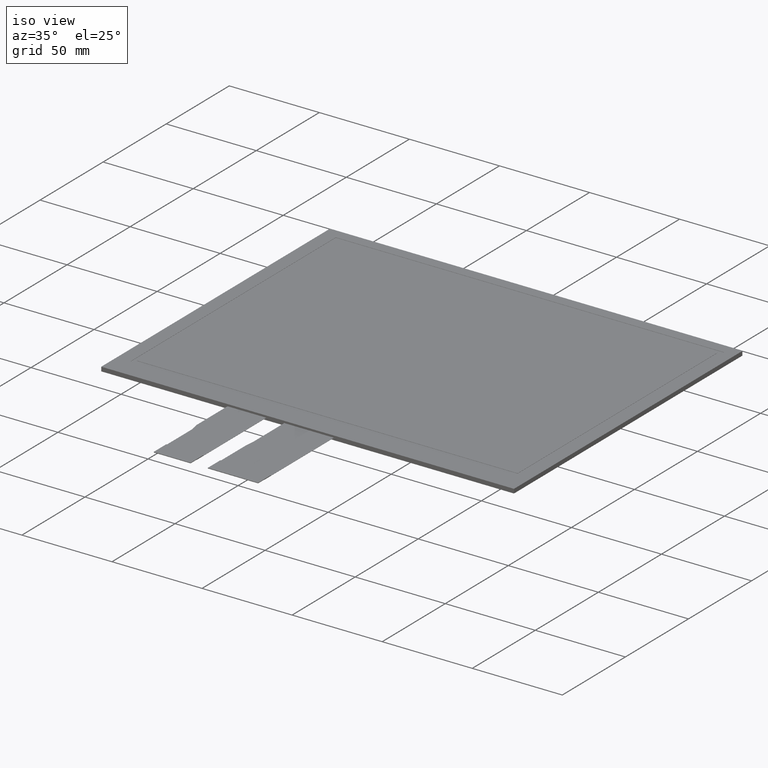
[diagram: clean part render]
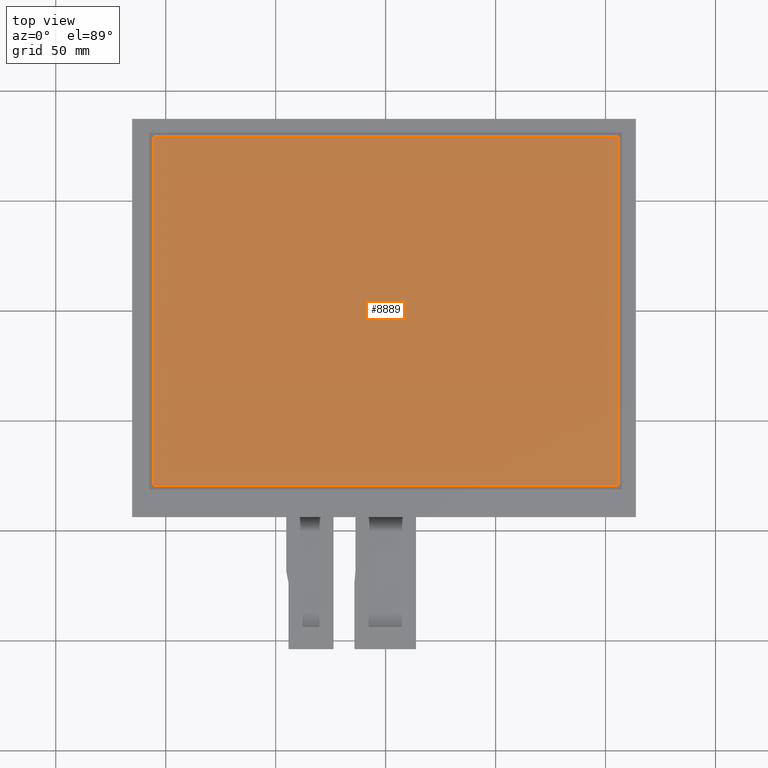
[diagram: tour spotlight — one face highlighted and labeled with its STEP entity id]
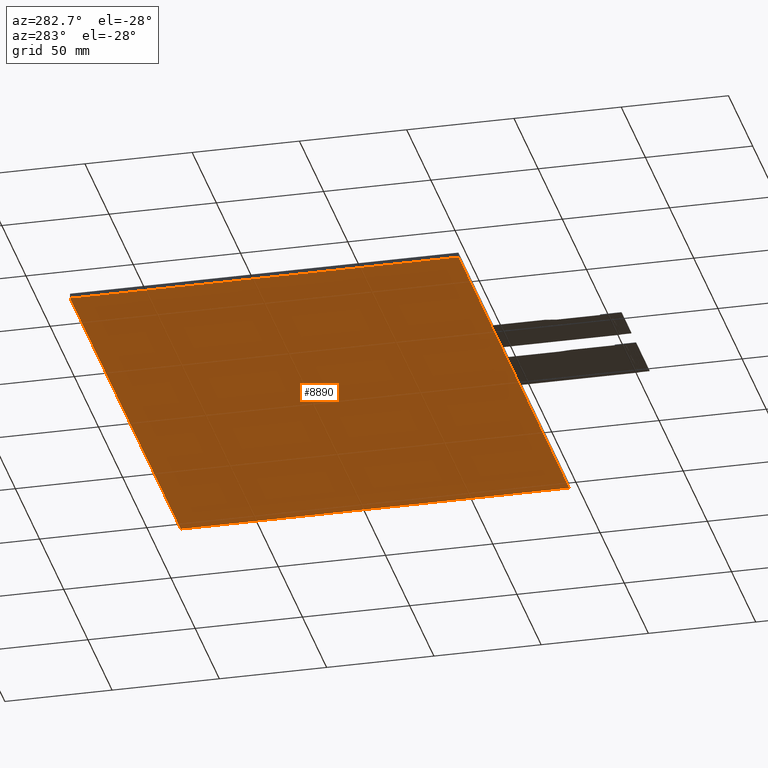
[diagram: tour spotlight — one face highlighted and labeled with its STEP entity id]
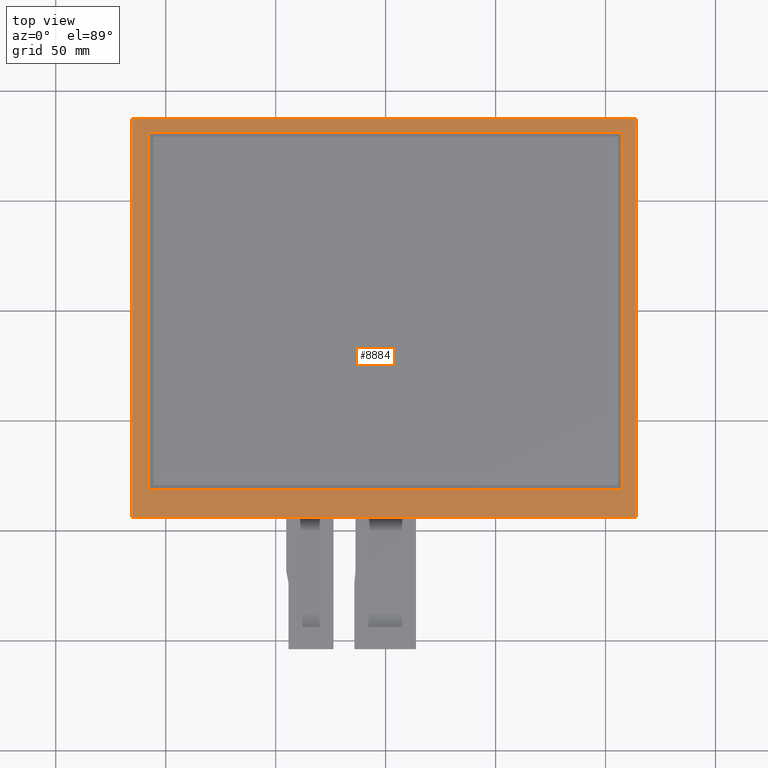
[diagram: tour spotlight — one face highlighted and labeled with its STEP entity id]
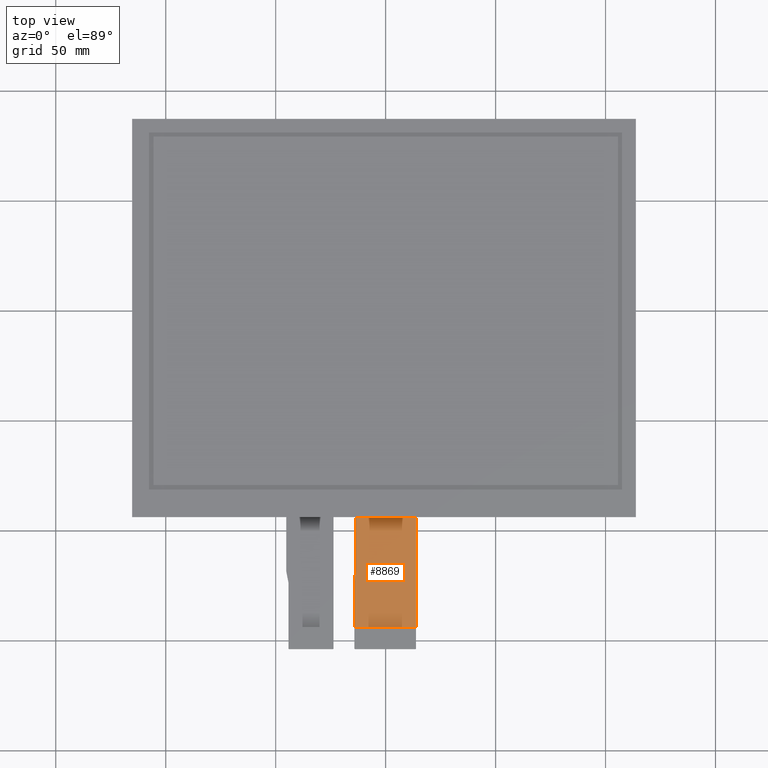
[diagram: tour spotlight — one face highlighted and labeled with its STEP entity id]
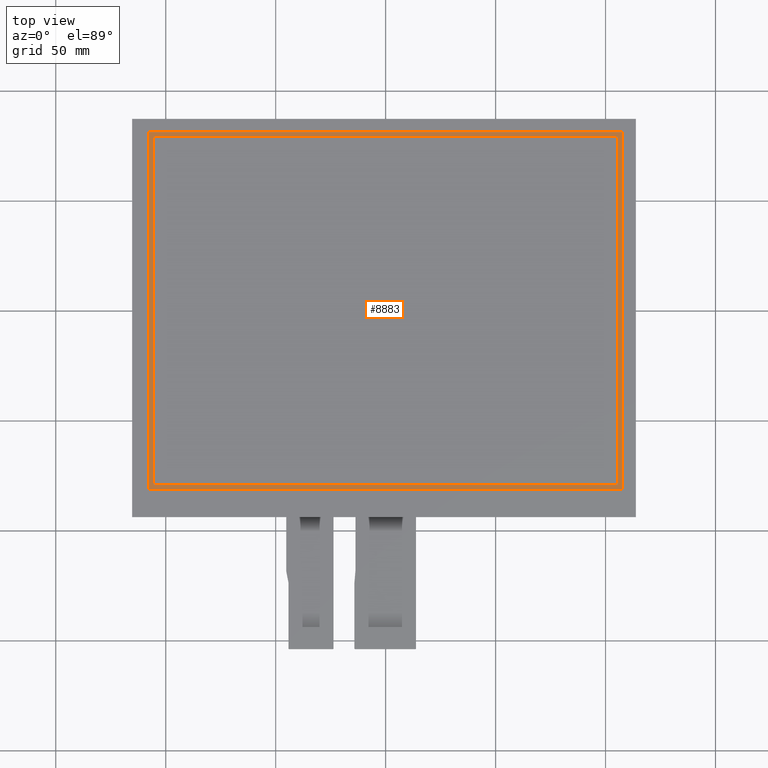
[diagram: tour spotlight — one face highlighted and labeled with its STEP entity id]
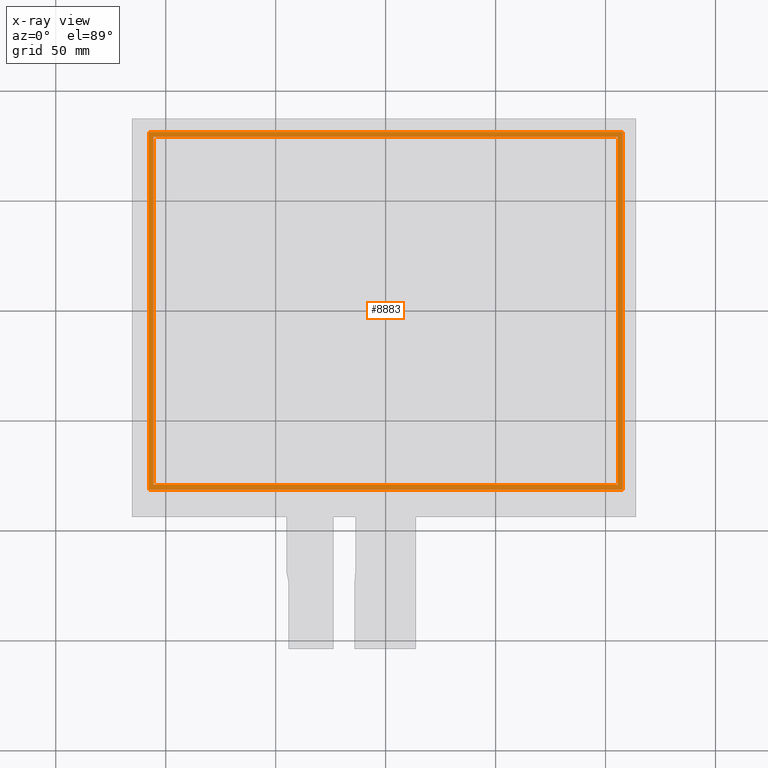
[diagram: x-ray of the same camera — body ghosted, this tour face saturated]
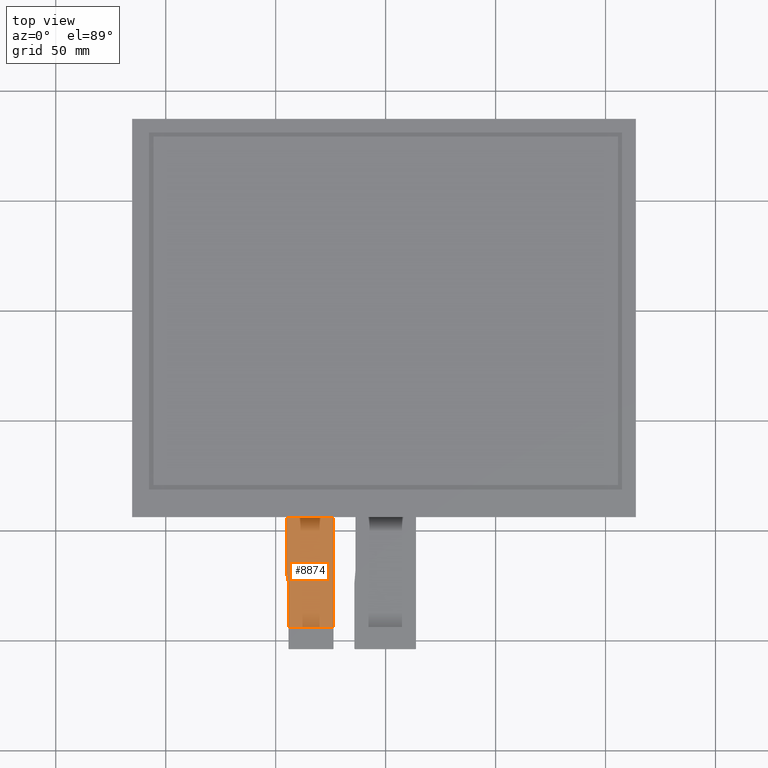
[diagram: tour spotlight — one face highlighted and labeled with its STEP entity id]
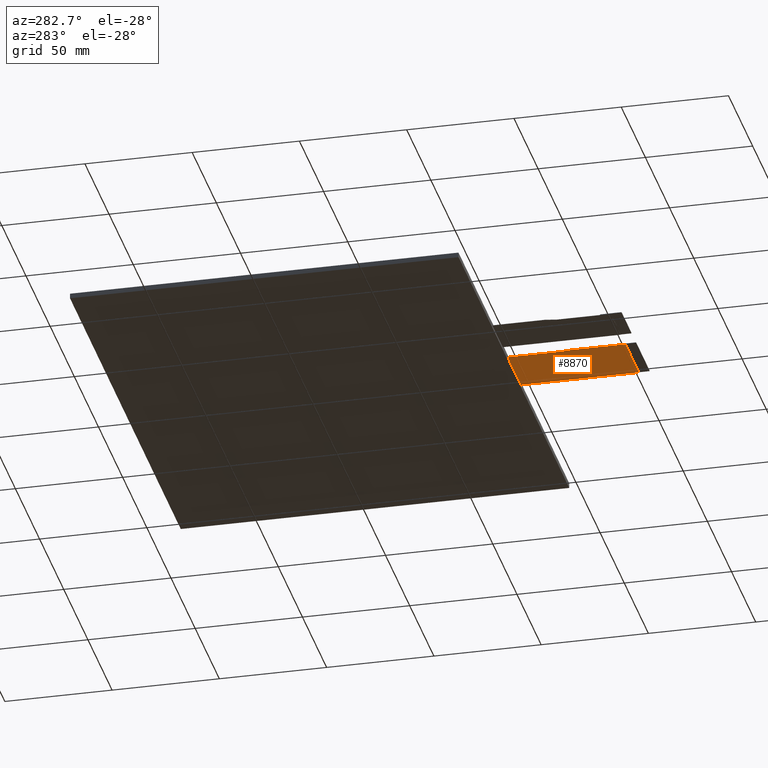
[diagram: tour spotlight — one face highlighted and labeled with its STEP entity id]
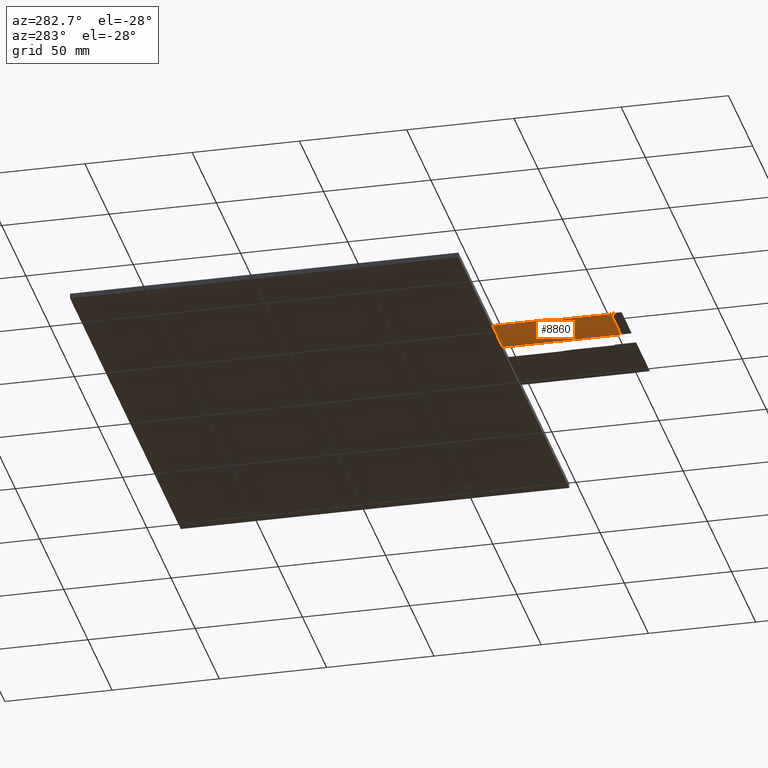
[diagram: tour spotlight — one face highlighted and labeled with its STEP entity id]
A machine part: a face-by-face anatomy tour. The part has 422 B-rep faces; the first image is the clean iso view, then the 8 largest visible faces are spotlighted one at a time (largest first), each with its STEP entity span.

Face 1 — top view, entity #8889. In plain terms, the highlighted planar face has unit normal (0, 0, 1).
Definition (entity closure, byte-faithful):
#551=PLANE('',#9339);
#973=FACE_OUTER_BOUND('',#1399,.T.);
#1399=EDGE_LOOP('',(#8457,#8458,#8459,#8460));
#2605=LINE('',#13873,#3845);
#2609=LINE('',#13881,#3849);
#2612=LINE('',#13887,#3852);
#2615=LINE('',#13892,#3855);
#3845=VECTOR('',#11377,10.);
#3849=VECTOR('',#11383,10.);
#3852=VECTOR('',#11388,10.);
#3855=VECTOR('',#11393,10.);
#4697=VERTEX_POINT('',#13871);
#4698=VERTEX_POINT('',#13872);
#4701=VERTEX_POINT('',#13880);
#4703=VERTEX_POINT('',#13886);
#5933=EDGE_CURVE('',#4697,#4698,#2605,.T.);
#5937=EDGE_CURVE('',#4701,#4697,#2609,.T.);
#5940=EDGE_CURVE('',#4703,#4701,#2612,.T.);
#5943=EDGE_CURVE('',#4698,#4703,#2615,.T.);
#8457=ORIENTED_EDGE('',*,*,#5933,.T.);
#8458=ORIENTED_EDGE('',*,*,#5943,.T.);
#8459=ORIENTED_EDGE('',*,*,#5940,.T.);
#8460=ORIENTED_EDGE('',*,*,#5937,.T.);
#8889=ADVANCED_FACE('',(#973),#551,.T.);
#9339=AXIS2_PLACEMENT_3D('',#13944,#11439,#11440);
#11377=DIRECTION('',(1.,0.,0.));
#11383=DIRECTION('',(0.,-1.,0.));
#11388=DIRECTION('',(-1.,0.,0.));
#11393=DIRECTION('',(0.,1.,0.));
#11439=DIRECTION('center_axis',(0.,0.,1.));
#11440=DIRECTION('ref_axis',(1.,0.,0.));
#13871=CARTESIAN_POINT('',(-105.6,-79.2,0.));
#13872=CARTESIAN_POINT('',(105.6,-79.2,0.));
#13873=CARTESIAN_POINT('',(-53.175,-79.2,0.));
#13880=CARTESIAN_POINT('',(-105.6,79.2,0.));
#13881=CARTESIAN_POINT('',(-105.6,37.975,0.));
#13886=CARTESIAN_POINT('',(105.6,79.2,0.));
#13887=CARTESIAN_POINT('',(52.425,79.2,0.));
#13892=CARTESIAN_POINT('',(105.6,-41.225,0.));
#13944=CARTESIAN_POINT('Origin',(-0.750000000000028,-3.24999999999999,0.));

Face 2 — auxiliary view, entity #8890. In plain terms, the highlighted planar face has unit normal (0, 0, -1).
Definition (entity closure, byte-faithful):
#552=PLANE('',#9340);
#974=FACE_OUTER_BOUND('',#1400,.T.);
#1400=EDGE_LOOP('',(#8461,#8462,#8463,#8464));
#2634=LINE('',#13932,#3874);
#2636=LINE('',#13936,#3876);
#2638=LINE('',#13940,#3878);
#2640=LINE('',#13943,#3880);
#3874=VECTOR('',#11426,10.);
#3876=VECTOR('',#11430,10.);
#3878=VECTOR('',#11434,10.);
#3880=VECTOR('',#11438,10.);
#4717=VERTEX_POINT('',#13929);
#4718=VERTEX_POINT('',#13931);
#4719=VERTEX_POINT('',#13935);
#4720=VERTEX_POINT('',#13939);
#5962=EDGE_CURVE('',#4718,#4717,#2634,.T.);
#5964=EDGE_CURVE('',#4719,#4718,#2636,.T.);
#5966=EDGE_CURVE('',#4720,#4719,#2638,.T.);
#5968=EDGE_CURVE('',#4717,#4720,#2640,.T.);
#8461=ORIENTED_EDGE('',*,*,#5968,.T.);
#8462=ORIENTED_EDGE('',*,*,#5966,.T.);
#8463=ORIENTED_EDGE('',*,*,#5964,.T.);
#8464=ORIENTED_EDGE('',*,*,#5962,.T.);
#8890=ADVANCED_FACE('',(#974),#552,.T.);
#9340=AXIS2_PLACEMENT_3D('',#13945,#11441,#11442);
#11426=DIRECTION('',(-1.96174140187769E-16,1.,0.));
#11430=DIRECTION('',(-1.,-1.55072618018354E-16,0.));
#11434=DIRECTION('',(1.96174140187769E-16,-1.,0.));
#11438=DIRECTION('',(1.,0.,0.));
#11441=DIRECTION('center_axis',(0.,0.,-1.));
#11442=DIRECTION('ref_axis',(-1.,0.,0.));
#13929=CARTESIAN_POINT('',(-115.3,87.3,-2.35));
#13931=CARTESIAN_POINT('',(-115.3,-93.8,-2.35));
#13932=CARTESIAN_POINT('',(-115.3,87.3,-2.35));
#13935=CARTESIAN_POINT('',(113.8,-93.8,-2.35));
#13936=CARTESIAN_POINT('',(-115.3,-93.8,-2.35));
#13939=CARTESIAN_POINT('',(113.8,87.3,-2.35));
#13940=CARTESIAN_POINT('',(113.8,-93.8,-2.35));
#13943=CARTESIAN_POINT('',(113.8,87.3,-2.35));
#13945=CARTESIAN_POINT('Origin',(-0.750000000000028,-3.24999999999999,-2.35));

Face 3 — top view, entity #8884. In plain terms, the highlighted planar face has unit normal (0, 0, 1).
Definition (entity closure, byte-faithful):
#132=FACE_BOUND('',#1392,.T.);
#546=PLANE('',#9334);
#968=FACE_OUTER_BOUND('',#1391,.T.);
#1391=EDGE_LOOP('',(#8425,#8426,#8427,#8428));
#1392=EDGE_LOOP('',(#8429,#8430,#8431,#8432));
#2617=LINE('',#13897,#3857);
#2621=LINE('',#13905,#3861);
#2624=LINE('',#13911,#3864);
#2627=LINE('',#13916,#3867);
#2629=LINE('',#13922,#3869);
#2630=LINE('',#13924,#3870);
#2631=LINE('',#13926,#3871);
#2632=LINE('',#13927,#3872);
#3857=VECTOR('',#11397,10.);
#3861=VECTOR('',#11403,10.);
#3864=VECTOR('',#11408,10.);
#3867=VECTOR('',#11413,10.);
#3869=VECTOR('',#11419,10.);
#3870=VECTOR('',#11420,10.);
#3871=VECTOR('',#11421,10.);
#3872=VECTOR('',#11422,10.);
#4705=VERTEX_POINT('',#13895);
#4706=VERTEX_POINT('',#13896);
#4709=VERTEX_POINT('',#13904);
#4711=VERTEX_POINT('',#13910);
#4713=VERTEX_POINT('',#13920);
#4714=VERTEX_POINT('',#13921);
#4715=VERTEX_POINT('',#13923);
#4716=VERTEX_POINT('',#13925);
#5945=EDGE_CURVE('',#4705,#4706,#2617,.T.);
#5949=EDGE_CURVE('',#4709,#4705,#2621,.T.);
#5952=EDGE_CURVE('',#4711,#4709,#2624,.T.);
#5955=EDGE_CURVE('',#4706,#4711,#2627,.T.);
#5957=EDGE_CURVE('',#4713,#4714,#2629,.T.);
#5958=EDGE_CURVE('',#4714,#4715,#2630,.T.);
#5959=EDGE_CURVE('',#4715,#4716,#2631,.T.);
#5960=EDGE_CURVE('',#4716,#4713,#2632,.T.);
#8425=ORIENTED_EDGE('',*,*,#5957,.T.);
#8426=ORIENTED_EDGE('',*,*,#5958,.T.);
#8427=ORIENTED_EDGE('',*,*,#5959,.T.);
#8428=ORIENTED_EDGE('',*,*,#5960,.T.);
#8429=ORIENTED_EDGE('',*,*,#5945,.T.);
#8430=ORIENTED_EDGE('',*,*,#5955,.T.);
#8431=ORIENTED_EDGE('',*,*,#5952,.T.);
#8432=ORIENTED_EDGE('',*,*,#5949,.T.);
#8884=ADVANCED_FACE('',(#968,#132),#546,.T.);
#9334=AXIS2_PLACEMENT_3D('',#13919,#11417,#11418);
#11397=DIRECTION('',(-2.18359783577167E-16,1.,0.));
#11403=DIRECTION('',(-1.,0.,0.));
#11408=DIRECTION('',(1.09179891788583E-16,-1.,0.));
#11413=DIRECTION('',(1.,0.,0.));
#11417=DIRECTION('center_axis',(0.,0.,1.));
#11418=DIRECTION('ref_axis',(1.,0.,0.));
#11419=DIRECTION('',(-1.,0.,0.));
#11420=DIRECTION('',(1.96174140187769E-16,-1.,0.));
#11421=DIRECTION('',(1.,1.55072618018354E-16,0.));
#11422=DIRECTION('',(-1.96174140187769E-16,1.,0.));
#13895=CARTESIAN_POINT('',(-107.7,-81.4,0.));
#13896=CARTESIAN_POINT('',(-107.7,81.3,0.));
#13897=CARTESIAN_POINT('',(-107.7,-42.325,0.));
#13904=CARTESIAN_POINT('',(107.7,-81.4,0.));
#13905=CARTESIAN_POINT('',(53.475,-81.4,0.));
#13910=CARTESIAN_POINT('',(107.7,81.3,0.));
#13911=CARTESIAN_POINT('',(107.7,39.025,0.));
#13916=CARTESIAN_POINT('',(-54.225,81.3,0.));
#13919=CARTESIAN_POINT('Origin',(-0.750000000000028,-3.24999999999999,0.));
#13920=CARTESIAN_POINT('',(113.8,87.3,0.));
#13921=CARTESIAN_POINT('',(-115.3,87.3,0.));
#13922=CARTESIAN_POINT('',(113.8,87.3,0.));
#13923=CARTESIAN_POINT('',(-115.3,-93.8,0.));
#13924=CARTESIAN_POINT('',(-115.3,87.3,0.));
#13925=CARTESIAN_POINT('',(113.8,-93.8,0.));
#13926=CARTESIAN_POINT('',(-115.3,-93.8,0.));
#13927=CARTESIAN_POINT('',(113.8,-93.8,0.));

Face 4 — top view, entity #8869. In plain terms, the highlighted planar face has unit normal (0, 0, 1).
Definition (entity closure, byte-faithful):
#531=PLANE('',#9319);
#953=FACE_OUTER_BOUND('',#1375,.T.);
#1375=EDGE_LOOP('',(#8351,#8352,#8353,#8354,#8355,#8356));
#1803=LINE('',#12268,#3043);
#2583=LINE('',#13828,#3823);
#2586=LINE('',#13833,#3826);
#2590=LINE('',#13843,#3830);
#2594=LINE('',#13850,#3834);
#2596=LINE('',#13853,#3836);
#3043=VECTOR('',#9779,10.);
#3823=VECTOR('',#11331,10.);
#3826=VECTOR('',#11336,10.);
#3830=VECTOR('',#11346,10.);
#3834=VECTOR('',#11352,10.);
#3836=VECTOR('',#11356,10.);
#4292=VERTEX_POINT('',#12265);
#4293=VERTEX_POINT('',#12267);
#4686=VERTEX_POINT('',#13825);
#4687=VERTEX_POINT('',#13827);
#4690=VERTEX_POINT('',#13841);
#4691=VERTEX_POINT('',#13842);
#5131=EDGE_CURVE('',#4293,#4292,#1803,.T.);
#5911=EDGE_CURVE('',#4687,#4686,#2583,.T.);
#5914=EDGE_CURVE('',#4686,#4293,#2586,.T.);
#5918=EDGE_CURVE('',#4690,#4691,#2590,.T.);
#5922=EDGE_CURVE('',#4691,#4687,#2594,.T.);
#5924=EDGE_CURVE('',#4690,#4292,#2596,.T.);
#8351=ORIENTED_EDGE('',*,*,#5914,.T.);
#8352=ORIENTED_EDGE('',*,*,#5131,.T.);
#8353=ORIENTED_EDGE('',*,*,#5924,.F.);
#8354=ORIENTED_EDGE('',*,*,#5918,.T.);
#8355=ORIENTED_EDGE('',*,*,#5922,.T.);
#8356=ORIENTED_EDGE('',*,*,#5911,.T.);
#8869=ADVANCED_FACE('',(#953),#531,.T.);
#9319=AXIS2_PLACEMENT_3D('',#13852,#11354,#11355);
#9779=DIRECTION('',(1.77635683940025E-15,1.,0.));
#11331=DIRECTION('',(-1.4704940723512E-16,-1.,0.));
#11336=DIRECTION('',(1.,0.,0.));
#11346=DIRECTION('',(1.8503717077086E-16,-1.,0.));
#11352=DIRECTION('',(-0.0858883421530299,-0.996304768974938,0.));
#11354=DIRECTION('center_axis',(0.,0.,1.));
#11355=DIRECTION('ref_axis',(1.,0.,0.));
#11356=DIRECTION('',(1.,1.55072618018354E-16,0.));
#12265=CARTESIAN_POINT('',(13.8000000000001,-93.8,-1.1));
#12267=CARTESIAN_POINT('',(13.8,-143.8,-1.1));
#12268=CARTESIAN_POINT('',(13.8,-153.8,-1.1));
#13825=CARTESIAN_POINT('',(-14.2,-143.8,-1.1));
#13827=CARTESIAN_POINT('',(-14.2,-123.6,-1.1));
#13828=CARTESIAN_POINT('',(-14.2,-123.6,-1.1));
#13833=CARTESIAN_POINT('',(6.80000000000001,-143.8,-1.1));
#13841=CARTESIAN_POINT('',(-13.6999999999999,-93.8,-1.1));
#13842=CARTESIAN_POINT('',(-13.6999999999999,-117.8,-1.1));
#13843=CARTESIAN_POINT('',(-13.6999999999999,-93.8,-1.1));
#13850=CARTESIAN_POINT('',(-13.6999999999999,-117.8,-1.1));
#13852=CARTESIAN_POINT('Origin',(-0.199999999999957,-123.8,-1.1));
#13853=CARTESIAN_POINT('',(56.8,-93.8,-1.1));

Face 5 — top view, entity #8883. An x-ray twin of the same camera follows (body ghosted, this face saturated) — the face is partly hidden behind the body. In plain terms, the highlighted planar face has unit normal (0, 0, -1).
Definition (entity closure, byte-faithful):
#131=FACE_BOUND('',#1390,.T.);
#545=PLANE('',#9333);
#967=FACE_OUTER_BOUND('',#1389,.T.);
#1389=EDGE_LOOP('',(#8417,#8418,#8419,#8420));
#1390=EDGE_LOOP('',(#8421,#8422,#8423,#8424));
#2607=LINE('',#13877,#3847);
#2611=LINE('',#13884,#3851);
#2614=LINE('',#13890,#3854);
#2616=LINE('',#13893,#3856);
#2619=LINE('',#13901,#3859);
#2623=LINE('',#13908,#3863);
#2626=LINE('',#13914,#3866);
#2628=LINE('',#13917,#3868);
#3847=VECTOR('',#11379,10.);
#3851=VECTOR('',#11385,10.);
#3854=VECTOR('',#11390,10.);
#3856=VECTOR('',#11394,10.);
#3859=VECTOR('',#11399,10.);
#3863=VECTOR('',#11405,10.);
#3866=VECTOR('',#11410,10.);
#3868=VECTOR('',#11414,10.);
#4699=VERTEX_POINT('',#13874);
#4700=VERTEX_POINT('',#13876);
#4702=VERTEX_POINT('',#13882);
#4704=VERTEX_POINT('',#13888);
#4707=VERTEX_POINT('',#13898);
#4708=VERTEX_POINT('',#13900);
#4710=VERTEX_POINT('',#13906);
#4712=VERTEX_POINT('',#13912);
#5935=EDGE_CURVE('',#4699,#4700,#2607,.T.);
#5939=EDGE_CURVE('',#4702,#4699,#2611,.T.);
#5942=EDGE_CURVE('',#4704,#4702,#2614,.T.);
#5944=EDGE_CURVE('',#4700,#4704,#2616,.T.);
#5947=EDGE_CURVE('',#4707,#4708,#2619,.T.);
#5951=EDGE_CURVE('',#4710,#4707,#2623,.T.);
#5954=EDGE_CURVE('',#4712,#4710,#2626,.T.);
#5956=EDGE_CURVE('',#4708,#4712,#2628,.T.);
#8417=ORIENTED_EDGE('',*,*,#5956,.F.);
#8418=ORIENTED_EDGE('',*,*,#5947,.F.);
#8419=ORIENTED_EDGE('',*,*,#5951,.F.);
#8420=ORIENTED_EDGE('',*,*,#5954,.F.);
#8421=ORIENTED_EDGE('',*,*,#5944,.F.);
#8422=ORIENTED_EDGE('',*,*,#5935,.F.);
#8423=ORIENTED_EDGE('',*,*,#5939,.F.);
#8424=ORIENTED_EDGE('',*,*,#5942,.F.);
#8883=ADVANCED_FACE('',(#967,#131),#545,.F.);
#9333=AXIS2_PLACEMENT_3D('',#13918,#11415,#11416);
#11379=DIRECTION('',(1.,0.,0.));
#11385=DIRECTION('',(0.,-1.,0.));
#11390=DIRECTION('',(-1.,0.,0.));
#11394=DIRECTION('',(0.,1.,0.));
#11399=DIRECTION('',(-2.18359783577167E-16,1.,0.));
#11405=DIRECTION('',(-1.,0.,0.));
#11410=DIRECTION('',(1.09179891788583E-16,-1.,0.));
#11414=DIRECTION('',(1.,0.,0.));
#11415=DIRECTION('center_axis',(0.,0.,-1.));
#11416=DIRECTION('ref_axis',(-1.,0.,0.));
#13874=CARTESIAN_POINT('',(-105.6,-79.2,-0.1));
#13876=CARTESIAN_POINT('',(105.6,-79.2,-0.1));
#13877=CARTESIAN_POINT('',(105.6,-79.2,-0.1));
#13882=CARTESIAN_POINT('',(-105.6,79.2,-0.1));
#13884=CARTESIAN_POINT('',(-105.6,-79.2,-0.1));
#13888=CARTESIAN_POINT('',(105.6,79.2,-0.1));
#13890=CARTESIAN_POINT('',(-105.6,79.2,-0.1));
#13893=CARTESIAN_POINT('',(105.6,79.2,-0.1));
#13898=CARTESIAN_POINT('',(-107.7,-81.4,-0.1));
#13900=CARTESIAN_POINT('',(-107.7,81.3,-0.1));
#13901=CARTESIAN_POINT('',(-107.7,81.3,-0.1));
#13906=CARTESIAN_POINT('',(107.7,-81.4,-0.1));
#13908=CARTESIAN_POINT('',(-107.7,-81.4,-0.1));
#13912=CARTESIAN_POINT('',(107.7,81.3,-0.1));
#13914=CARTESIAN_POINT('',(107.7,-81.4,-0.1));
#13917=CARTESIAN_POINT('',(107.7,81.3,-0.1));
#13918=CARTESIAN_POINT('Origin',(-1.77635683940025E-14,-0.0500000000000078,
-0.1));

Face 6 — top view, entity #8874. In plain terms, the highlighted planar face has unit normal (0, 0, 1).
Definition (entity closure, byte-faithful):
#536=PLANE('',#9324);
#958=FACE_OUTER_BOUND('',#1380,.T.);
#1380=EDGE_LOOP('',(#8379,#8380,#8381,#8382,#8383,#8384));
#2577=LINE('',#13816,#3817);
#2588=LINE('',#13838,#3828);
#2598=LINE('',#13859,#3838);
#2601=LINE('',#13863,#3841);
#2603=LINE('',#13867,#3843);
#2604=LINE('',#13869,#3844);
#3817=VECTOR('',#11321,10.);
#3828=VECTOR('',#11342,10.);
#3838=VECTOR('',#11362,10.);
#3841=VECTOR('',#11367,10.);
#3843=VECTOR('',#11371,10.);
#3844=VECTOR('',#11374,10.);
#4682=VERTEX_POINT('',#13813);
#4683=VERTEX_POINT('',#13815);
#4689=VERTEX_POINT('',#13837);
#4694=VERTEX_POINT('',#13857);
#4695=VERTEX_POINT('',#13858);
#4696=VERTEX_POINT('',#13865);
#5905=EDGE_CURVE('',#4683,#4682,#2577,.T.);
#5916=EDGE_CURVE('',#4682,#4689,#2588,.T.);
#5926=EDGE_CURVE('',#4694,#4695,#2598,.T.);
#5929=EDGE_CURVE('',#4695,#4683,#2601,.T.);
#5931=EDGE_CURVE('',#4689,#4696,#2603,.T.);
#5932=EDGE_CURVE('',#4694,#4696,#2604,.T.);
#8379=ORIENTED_EDGE('',*,*,#5916,.T.);
#8380=ORIENTED_EDGE('',*,*,#5931,.T.);
#8381=ORIENTED_EDGE('',*,*,#5932,.F.);
#8382=ORIENTED_EDGE('',*,*,#5926,.T.);
#8383=ORIENTED_EDGE('',*,*,#5929,.T.);
#8384=ORIENTED_EDGE('',*,*,#5905,.T.);
#8874=ADVANCED_FACE('',(#958),#536,.T.);
#9324=AXIS2_PLACEMENT_3D('',#13868,#11372,#11373);
#11321=DIRECTION('',(2.93418704889371E-16,-1.,0.));
#11342=DIRECTION('',(1.,0.,0.));
#11362=DIRECTION('',(0.,-1.,0.));
#11367=DIRECTION('',(0.190808995376545,-0.981627183447664,0.));
#11371=DIRECTION('',(-5.18104078158406E-16,1.,0.));
#11372=DIRECTION('center_axis',(0.,0.,1.));
#11373=DIRECTION('ref_axis',(1.,0.,0.));
#11374=DIRECTION('',(1.,1.55072618018354E-16,0.));
#13813=CARTESIAN_POINT('',(-44.2,-143.8,-1.1));
#13815=CARTESIAN_POINT('',(-44.2,-123.53,-1.1));
#13816=CARTESIAN_POINT('',(-44.2,-123.53,-1.1));
#13837=CARTESIAN_POINT('',(-23.7,-143.8,-1.1));
#13838=CARTESIAN_POINT('',(-29.075,-143.8,-1.1));
#13857=CARTESIAN_POINT('',(-45.2,-93.8,-1.1));
#13858=CARTESIAN_POINT('',(-45.2,-118.38544598403,-1.1));
#13859=CARTESIAN_POINT('',(-45.2,-93.8,-1.1));
#13863=CARTESIAN_POINT('',(-45.2,-118.38544598403,-1.1));
#13865=CARTESIAN_POINT('',(-23.7,-93.8,-1.1));
#13867=CARTESIAN_POINT('',(-23.7,-153.8,-1.1));
#13868=CARTESIAN_POINT('Origin',(-34.45,-123.8,-1.1));
#13869=CARTESIAN_POINT('',(39.675,-93.8,-1.1));

Face 7 — auxiliary view, entity #8870. In plain terms, the highlighted planar face has unit normal (0, 0, -1).
Definition (entity closure, byte-faithful):
#532=PLANE('',#9320);
#954=FACE_OUTER_BOUND('',#1376,.T.);
#1376=EDGE_LOOP('',(#8357,#8358,#8359,#8360,#8361,#8362));
#1801=LINE('',#12264,#3041);
#2580=LINE('',#13821,#3820);
#2585=LINE('',#13831,#3825);
#2592=LINE('',#13847,#3832);
#2595=LINE('',#13851,#3835);
#2597=LINE('',#13855,#3837);
#3041=VECTOR('',#9777,10.);
#3820=VECTOR('',#11326,10.);
#3825=VECTOR('',#11333,10.);
#3832=VECTOR('',#11348,10.);
#3835=VECTOR('',#11353,10.);
#3837=VECTOR('',#11359,10.);
#4290=VERTEX_POINT('',#12261);
#4291=VERTEX_POINT('',#12263);
#4684=VERTEX_POINT('',#13819);
#4688=VERTEX_POINT('',#13829);
#4692=VERTEX_POINT('',#13844);
#4693=VERTEX_POINT('',#13846);
#5129=EDGE_CURVE('',#4291,#4290,#1801,.T.);
#5908=EDGE_CURVE('',#4290,#4684,#2580,.T.);
#5913=EDGE_CURVE('',#4684,#4688,#2585,.T.);
#5920=EDGE_CURVE('',#4693,#4692,#2592,.T.);
#5923=EDGE_CURVE('',#4688,#4693,#2595,.T.);
#5925=EDGE_CURVE('',#4291,#4692,#2597,.T.);
#8357=ORIENTED_EDGE('',*,*,#5908,.T.);
#8358=ORIENTED_EDGE('',*,*,#5913,.T.);
#8359=ORIENTED_EDGE('',*,*,#5923,.T.);
#8360=ORIENTED_EDGE('',*,*,#5920,.T.);
#8361=ORIENTED_EDGE('',*,*,#5925,.F.);
#8362=ORIENTED_EDGE('',*,*,#5129,.T.);
#8870=ADVANCED_FACE('',(#954),#532,.T.);
#9320=AXIS2_PLACEMENT_3D('',#13854,#11357,#11358);
#9777=DIRECTION('',(-1.77635683940025E-15,-1.,0.));
#11326=DIRECTION('',(-1.,0.,0.));
#11333=DIRECTION('',(1.4704940723512E-16,1.,0.));
#11348=DIRECTION('',(-1.8503717077086E-16,1.,0.));
#11353=DIRECTION('',(0.0858883421530299,0.996304768974938,0.));
#11357=DIRECTION('center_axis',(0.,0.,-1.));
#11358=DIRECTION('ref_axis',(-1.,0.,0.));
#11359=DIRECTION('',(-1.,-1.55072618018354E-16,0.));
#12261=CARTESIAN_POINT('',(13.8,-148.8,-1.2));
#12263=CARTESIAN_POINT('',(13.8000000000001,-93.8,-1.2));
#12264=CARTESIAN_POINT('',(13.8,-153.8,-1.2));
#13819=CARTESIAN_POINT('',(-14.2,-148.8,-1.2));
#13821=CARTESIAN_POINT('',(6.80000000000001,-148.8,-1.2));
#13829=CARTESIAN_POINT('',(-14.2,-123.6,-1.2));
#13831=CARTESIAN_POINT('',(-14.2,-123.6,-1.2));
#13844=CARTESIAN_POINT('',(-13.6999999999999,-93.8,-1.2));
#13846=CARTESIAN_POINT('',(-13.6999999999999,-117.8,-1.2));
#13847=CARTESIAN_POINT('',(-13.6999999999999,-93.8,-1.2));
#13851=CARTESIAN_POINT('',(-13.6999999999999,-117.8,-1.2));
#13854=CARTESIAN_POINT('Origin',(-0.199999999999958,-123.8,-1.2));
#13855=CARTESIAN_POINT('',(56.8,-93.8,-1.2));

Face 8 — auxiliary view, entity #8860. In plain terms, the highlighted planar face has unit normal (0, 0, -1).
Definition (entity closure, byte-faithful):
#522=PLANE('',#9310);
#944=FACE_OUTER_BOUND('',#1366,.T.);
#1366=EDGE_LOOP('',(#8083,#8084,#8085,#8086,#8087,#8088));
#2568=LINE('',#13798,#3808);
#2571=LINE('',#13804,#3811);
#2572=LINE('',#13806,#3812);
#2573=LINE('',#13808,#3813);
#2574=LINE('',#13810,#3814);
#2575=LINE('',#13811,#3815);
#3808=VECTOR('',#11306,10.);
#3811=VECTOR('',#11313,10.);
#3812=VECTOR('',#11314,10.);
#3813=VECTOR('',#11315,10.);
#3814=VECTOR('',#11316,10.);
#3815=VECTOR('',#11317,10.);
#4676=VERTEX_POINT('',#13795);
#4677=VERTEX_POINT('',#13797);
#4678=VERTEX_POINT('',#13803);
#4679=VERTEX_POINT('',#13805);
#4680=VERTEX_POINT('',#13807);
#4681=VERTEX_POINT('',#13809);
#5896=EDGE_CURVE('',#4677,#4676,#2568,.T.);
#5899=EDGE_CURVE('',#4676,#4678,#2571,.T.);
#5900=EDGE_CURVE('',#4678,#4679,#2572,.T.);
#5901=EDGE_CURVE('',#4679,#4680,#2573,.T.);
#5902=EDGE_CURVE('',#4681,#4680,#2574,.T.);
#5903=EDGE_CURVE('',#4681,#4677,#2575,.T.);
#8083=ORIENTED_EDGE('',*,*,#5896,.T.);
#8084=ORIENTED_EDGE('',*,*,#5899,.T.);
#8085=ORIENTED_EDGE('',*,*,#5900,.T.);
#8086=ORIENTED_EDGE('',*,*,#5901,.T.);
#8087=ORIENTED_EDGE('',*,*,#5902,.F.);
#8088=ORIENTED_EDGE('',*,*,#5903,.T.);
#8860=ADVANCED_FACE('',(#944),#522,.T.);
#9310=AXIS2_PLACEMENT_3D('',#13802,#11311,#11312);
#11306=DIRECTION('',(-1.,0.,0.));
#11311=DIRECTION('center_axis',(0.,0.,-1.));
#11312=DIRECTION('ref_axis',(-1.,0.,0.));
#11313=DIRECTION('',(-2.93418704889371E-16,1.,0.));
#11314=DIRECTION('',(-0.190808995376545,0.981627183447664,0.));
#11315=DIRECTION('',(0.,1.,0.));
#11316=DIRECTION('',(-1.,-1.55072618018354E-16,0.));
#11317=DIRECTION('',(5.18104078158406E-16,-1.,0.));
#13795=CARTESIAN_POINT('',(-44.2,-148.8,-1.2));
#13797=CARTESIAN_POINT('',(-23.7,-148.8,-1.2));
#13798=CARTESIAN_POINT('',(-29.075,-148.8,-1.2));
#13802=CARTESIAN_POINT('Origin',(-34.45,-123.8,-1.2));
#13803=CARTESIAN_POINT('',(-44.2,-123.53,-1.2));
#13804=CARTESIAN_POINT('',(-44.2,-123.53,-1.2));
#13805=CARTESIAN_POINT('',(-45.2,-118.38544598403,-1.2));
#13806=CARTESIAN_POINT('',(-45.2,-118.38544598403,-1.2));
#13807=CARTESIAN_POINT('',(-45.2,-93.8,-1.2));
#13808=CARTESIAN_POINT('',(-45.2,-93.8,-1.2));
#13809=CARTESIAN_POINT('',(-23.7,-93.8,-1.2));
#13810=CARTESIAN_POINT('',(39.675,-93.8,-1.2));
#13811=CARTESIAN_POINT('',(-23.7,-153.8,-1.2));